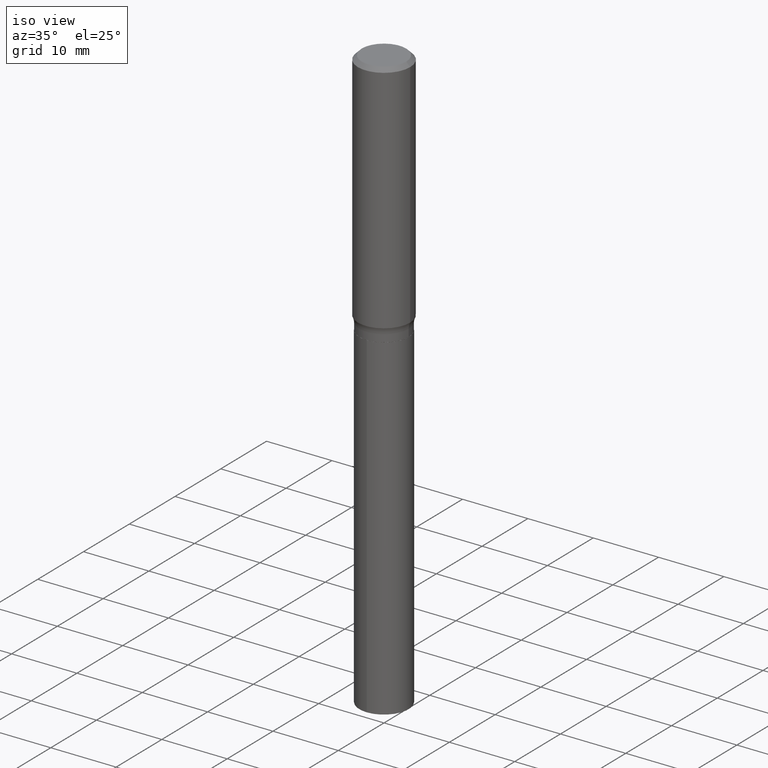
[diagram: clean part render]
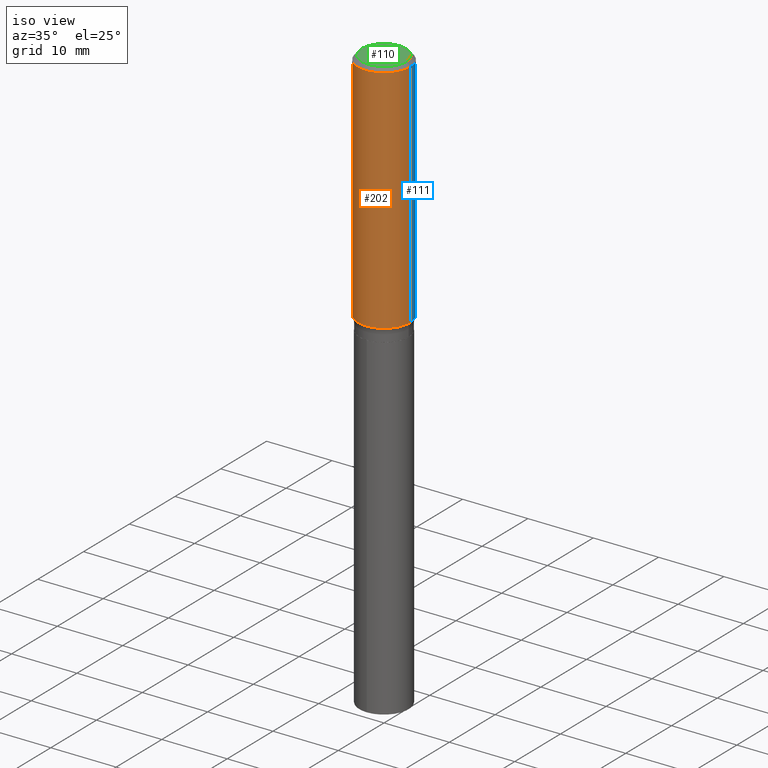
[diagram: same view with three faces highlighted in distinct colors, each labeled with its STEP entity id]
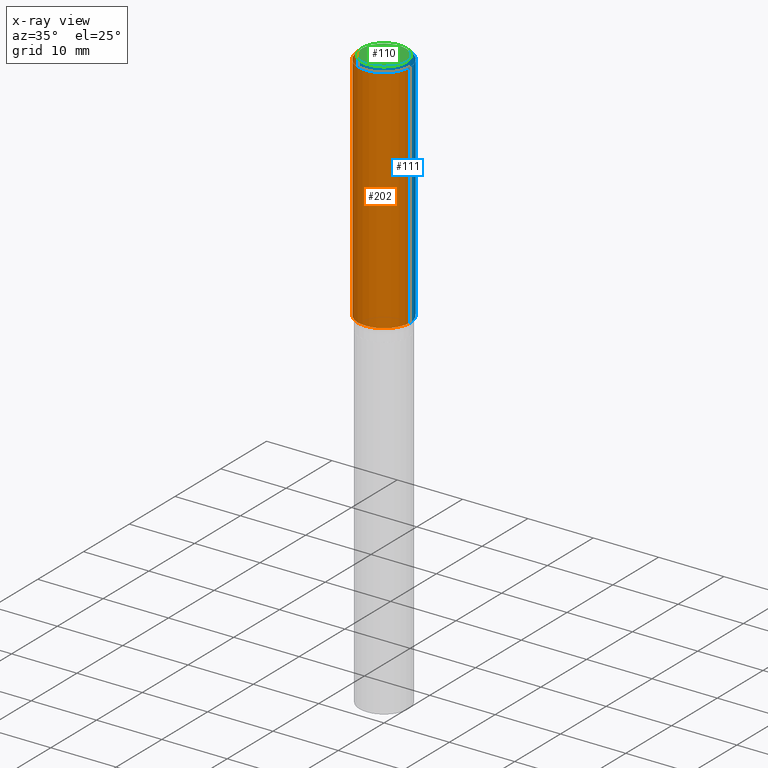
[diagram: x-ray of the same camera — body ghosted, the three highlighted faces saturated]
A machine part, iso view with three faces highlighted in distinct colors.
The next image is the same camera in x-ray (body ghosted, the three faces saturated) — at least one of them is partly hidden behind the body in this view.
Their STEP definitions:

[orange] entity #202 — the highlighted cylindrical surface (edge-blend (fillet) strip) has radius 4.0005 mm, axis along (-0, 0, 1).
#2 = AXIS2_PLACEMENT_3D ( 'NONE', #449, #270, #80 ) ;
#18 = ORIENTED_EDGE ( 'NONE', *, *, #52, .F. ) ;
#19 = CIRCLE ( 'NONE', #344, 0.1575000000000001676 ) ;
#22 = DIRECTION ( 'NONE',  ( 1.000000000000000000, -6.982962677686267499E-15, 4.876176775795936353E-29 ) ) ;
#29 = DIRECTION ( 'NONE',  ( -2.445468806185136597E-29, 3.491481338843145583E-15, 1.000000000000000000 ) ) ;
#41 = DIRECTION ( 'NONE',  ( -2.445468806185136877E-29, 3.491481338843145188E-15, 1.000000000000000000 ) ) ;
#52 = EDGE_CURVE ( 'NONE', #253, #214, #423, .T. ) ;
#64 = CYLINDRICAL_SURFACE ( 'NONE', #147, 0.1575000000000000844 ) ;
#72 = CARTESIAN_POINT ( 'NONE',  ( -0.1575000000000000844, 1.119104808822158392E-15, -7.747322767151481189E-30 ) ) ;
#74 = CARTESIAN_POINT ( 'NONE',  ( 0.1575000000000000011, -1.182302868365756679E-15, -0.02362500000000014588 ) ) ;
#80 = DIRECTION ( 'NONE',  ( 1.000000000000000000, -6.982962677686265922E-15, 0.000000000000000000 ) ) ;
#95 = DIRECTION ( 'NONE',  ( -2.445468806185136877E-29, 3.491481338843145188E-15, 1.000000000000000000 ) ) ;
#98 = ORIENTED_EDGE ( 'NONE', *, *, #376, .T. ) ;
#102 = VERTEX_POINT ( 'NONE', #324 ) ;
#114 = CARTESIAN_POINT ( 'NONE',  ( 3.460417203317335533E-29, -4.940558660750950028E-15, -1.415032240266229424 ) ) ;
#147 = AXIS2_PLACEMENT_3D ( 'NONE', #408, #354, #22 ) ;
#167 = LINE ( 'NONE', #455, #337 ) ;
#202 = ADVANCED_FACE ( 'NONE', ( #257 ), #64, .T. ) ;
#203 = ORIENTED_EDGE ( 'NONE', *, *, #239, .F. ) ;
#214 = VERTEX_POINT ( 'NONE', #74 ) ;
#239 = EDGE_CURVE ( 'NONE', #102, #253, #374, .T. ) ;
#253 = VERTEX_POINT ( 'NONE', #392 ) ;
#257 = FACE_OUTER_BOUND ( 'NONE', #359, .T. ) ;
#270 = DIRECTION ( 'NONE',  ( -2.445468806185136597E-29, 3.491481338843145583E-15, 1.000000000000000000 ) ) ;
#271 = CARTESIAN_POINT ( 'NONE',  ( 0.1575000000000001676, -6.040375282486537508E-15, -1.415032240266229424 ) ) ;
#323 = EDGE_CURVE ( 'NONE', #102, #458, #19, .T. ) ;
#324 = CARTESIAN_POINT ( 'NONE',  ( -0.1575000000000001676, -3.821453851928791636E-15, -1.415032240266229424 ) ) ;
#337 = VECTOR ( 'NONE', #95, 39.37007874015748143 ) ;
#344 = AXIS2_PLACEMENT_3D ( 'NONE', #114, #29, #461 ) ;
#354 = DIRECTION ( 'NONE',  ( -2.445468806185136597E-29, 3.491481338843145583E-15, 1.000000000000000000 ) ) ;
#359 = EDGE_LOOP ( 'NONE', ( #203, #462, #98, #18 ) ) ;
#374 = LINE ( 'NONE', #72, #482 ) ;
#376 = EDGE_CURVE ( 'NONE', #458, #214, #167, .T. ) ;
#392 = CARTESIAN_POINT ( 'NONE',  ( -0.1575000000000000011, -1.392417644868401320E-15, -0.02362500000000014588 ) ) ;
#408 = CARTESIAN_POINT ( 'NONE',  ( 0.000000000000000000, 0.000000000000000000, 0.000000000000000000 ) ) ;
#423 = CIRCLE ( 'NONE', #2, 0.1575000000000000011 ) ;
#449 = CARTESIAN_POINT ( 'NONE',  ( 5.777420054612421104E-31, -8.248624663016984002E-17, -0.02362500000000014588 ) ) ;
#455 = CARTESIAN_POINT ( 'NONE',  ( 0.1575000000000000844, -1.099816621735587677E-15, 7.679978421878603638E-30 ) ) ;
#458 = VERTEX_POINT ( 'NONE', #271 ) ;
#461 = DIRECTION ( 'NONE',  ( 1.000000000000000000, -6.982962677686267499E-15, 0.000000000000000000 ) ) ;
#462 = ORIENTED_EDGE ( 'NONE', *, *, #323, .T. ) ;
#482 = VECTOR ( 'NONE', #41, 39.37007874015748143 ) ;

[blue] entity #111 — the highlighted cylindrical surface (edge-blend (fillet) strip) has radius 4.0005 mm, axis along (-0, 0, 1).
#6 = AXIS2_PLACEMENT_3D ( 'NONE', #216, #358, #357 ) ;
#35 = DIRECTION ( 'NONE',  ( 1.000000000000000000, -6.982962677686267499E-15, 0.000000000000000000 ) ) ;
#41 = DIRECTION ( 'NONE',  ( -2.445468806185136877E-29, 3.491481338843145188E-15, 1.000000000000000000 ) ) ;
#62 = FACE_OUTER_BOUND ( 'NONE', #83, .T. ) ;
#72 = CARTESIAN_POINT ( 'NONE',  ( -0.1575000000000000844, 1.119104808822158392E-15, -7.747322767151481189E-30 ) ) ;
#74 = CARTESIAN_POINT ( 'NONE',  ( 0.1575000000000000011, -1.182302868365756679E-15, -0.02362500000000014588 ) ) ;
#83 = EDGE_LOOP ( 'NONE', ( #194, #163, #355, #383 ) ) ;
#95 = DIRECTION ( 'NONE',  ( -2.445468806185136877E-29, 3.491481338843145188E-15, 1.000000000000000000 ) ) ;
#102 = VERTEX_POINT ( 'NONE', #324 ) ;
#107 = DIRECTION ( 'NONE',  ( 1.000000000000000000, -6.982962677686265922E-15, 0.000000000000000000 ) ) ;
#111 = ADVANCED_FACE ( 'NONE', ( #62 ), #368, .T. ) ;
#163 = ORIENTED_EDGE ( 'NONE', *, *, #239, .T. ) ;
#167 = LINE ( 'NONE', #455, #337 ) ;
#180 = AXIS2_PLACEMENT_3D ( 'NONE', #361, #246, #107 ) ;
#187 = CARTESIAN_POINT ( 'NONE',  ( 3.460417203317335533E-29, -4.940558660750950028E-15, -1.415032240266229424 ) ) ;
#194 = ORIENTED_EDGE ( 'NONE', *, *, #226, .T. ) ;
#214 = VERTEX_POINT ( 'NONE', #74 ) ;
#216 = CARTESIAN_POINT ( 'NONE',  ( 0.000000000000000000, 0.000000000000000000, 0.000000000000000000 ) ) ;
#226 = EDGE_CURVE ( 'NONE', #458, #102, #319, .T. ) ;
#239 = EDGE_CURVE ( 'NONE', #102, #253, #374, .T. ) ;
#246 = DIRECTION ( 'NONE',  ( -2.445468806185136597E-29, 3.491481338843145583E-15, 1.000000000000000000 ) ) ;
#253 = VERTEX_POINT ( 'NONE', #392 ) ;
#271 = CARTESIAN_POINT ( 'NONE',  ( 0.1575000000000001676, -6.040375282486537508E-15, -1.415032240266229424 ) ) ;
#277 = EDGE_CURVE ( 'NONE', #214, #253, #417, .T. ) ;
#319 = CIRCLE ( 'NONE', #370, 0.1575000000000001676 ) ;
#324 = CARTESIAN_POINT ( 'NONE',  ( -0.1575000000000001676, -3.821453851928791636E-15, -1.415032240266229424 ) ) ;
#337 = VECTOR ( 'NONE', #95, 39.37007874015748143 ) ;
#355 = ORIENTED_EDGE ( 'NONE', *, *, #277, .F. ) ;
#357 = DIRECTION ( 'NONE',  ( 1.000000000000000000, -6.982962677686267499E-15, 4.876176775795936353E-29 ) ) ;
#358 = DIRECTION ( 'NONE',  ( -2.445468806185136597E-29, 3.491481338843145583E-15, 1.000000000000000000 ) ) ;
#361 = CARTESIAN_POINT ( 'NONE',  ( 5.777420054612421104E-31, -8.248624663016984002E-17, -0.02362500000000014588 ) ) ;
#368 = CYLINDRICAL_SURFACE ( 'NONE', #6, 0.1575000000000000844 ) ;
#370 = AXIS2_PLACEMENT_3D ( 'NONE', #187, #372, #35 ) ;
#372 = DIRECTION ( 'NONE',  ( -2.445468806185136597E-29, 3.491481338843145583E-15, 1.000000000000000000 ) ) ;
#374 = LINE ( 'NONE', #72, #482 ) ;
#376 = EDGE_CURVE ( 'NONE', #458, #214, #167, .T. ) ;
#383 = ORIENTED_EDGE ( 'NONE', *, *, #376, .F. ) ;
#392 = CARTESIAN_POINT ( 'NONE',  ( -0.1575000000000000011, -1.392417644868401320E-15, -0.02362500000000014588 ) ) ;
#417 = CIRCLE ( 'NONE', #180, 0.1575000000000000011 ) ;
#455 = CARTESIAN_POINT ( 'NONE',  ( 0.1575000000000000844, -1.099816621735587677E-15, 7.679978421878603638E-30 ) ) ;
#458 = VERTEX_POINT ( 'NONE', #271 ) ;
#482 = VECTOR ( 'NONE', #41, 39.37007874015748143 ) ;

[green] entity #110 — the highlighted planar face has unit normal (0, -0, -1).
#30 = AXIS2_PLACEMENT_3D ( 'NONE', #237, #49, #56 ) ;
#33 = PLANE ( 'NONE',  #109 ) ;
#49 = DIRECTION ( 'NONE',  ( -2.445468806185136597E-29, 3.491481338843145583E-15, 1.000000000000000000 ) ) ;
#56 = DIRECTION ( 'NONE',  ( 1.000000000000000000, -6.982962677686266711E-15, 4.876170806578254279E-29 ) ) ;
#57 = ORIENTED_EDGE ( 'NONE', *, *, #335, .T. ) ;
#66 = CARTESIAN_POINT ( 'NONE',  ( -5.014852121625163022E-47, 7.159879756154476955E-33, 2.050671065172241055E-18 ) ) ;
#77 = CIRCLE ( 'NONE', #30, 0.1338749999999999940 ) ;
#79 = DIRECTION ( 'NONE',  ( -2.445468806185136597E-29, 3.491481338843145583E-15, 1.000000000000000000 ) ) ;
#109 = AXIS2_PLACEMENT_3D ( 'NONE', #66, #292, #140 ) ;
#110 = ADVANCED_FACE ( 'NONE', ( #252 ), #33, .F. ) ;
#123 = DIRECTION ( 'NONE',  ( 1.000000000000000000, -6.982962677686266711E-15, 4.876170806578254279E-29 ) ) ;
#140 = DIRECTION ( 'NONE',  ( -1.000000000000000000, 6.982962677686265922E-15, -4.876176775795935793E-29 ) ) ;
#144 = VERTEX_POINT ( 'NONE', #365 ) ;
#237 = CARTESIAN_POINT ( 'NONE',  ( -1.002970424325032604E-46, 1.431975951230895391E-32, 4.101342130344482109E-18 ) ) ;
#252 = FACE_OUTER_BOUND ( 'NONE', #345, .T. ) ;
#266 = CARTESIAN_POINT ( 'NONE',  ( -0.1338749999999999940, 9.760872517903331886E-16, 4.101342130337800673E-18 ) ) ;
#292 = DIRECTION ( 'NONE',  ( 2.438088387897960049E-29, -3.491481338843145188E-15, -1.000000000000000000 ) ) ;
#335 = EDGE_CURVE ( 'NONE', #144, #471, #386, .T. ) ;
#339 = EDGE_CURVE ( 'NONE', #471, #144, #77, .T. ) ;
#345 = EDGE_LOOP ( 'NONE', ( #470, #57 ) ) ;
#365 = CARTESIAN_POINT ( 'NONE',  ( 0.1338749999999999940, -1.040731925365424925E-15, 4.101342130351390035E-18 ) ) ;
#386 = CIRCLE ( 'NONE', #445, 0.1338749999999999940 ) ;
#445 = AXIS2_PLACEMENT_3D ( 'NONE', #460, #79, #123 ) ;
#460 = CARTESIAN_POINT ( 'NONE',  ( -1.002970424325032604E-46, 1.431975951230895391E-32, 4.101342130344482109E-18 ) ) ;
#470 = ORIENTED_EDGE ( 'NONE', *, *, #339, .T. ) ;
#471 = VERTEX_POINT ( 'NONE', #266 ) ;